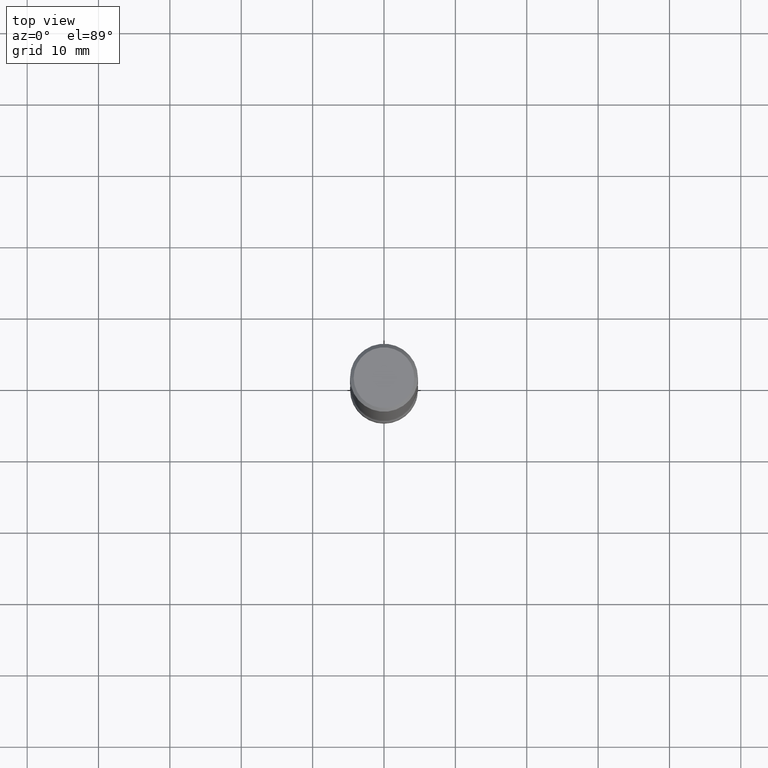
[diagram: clean part render]
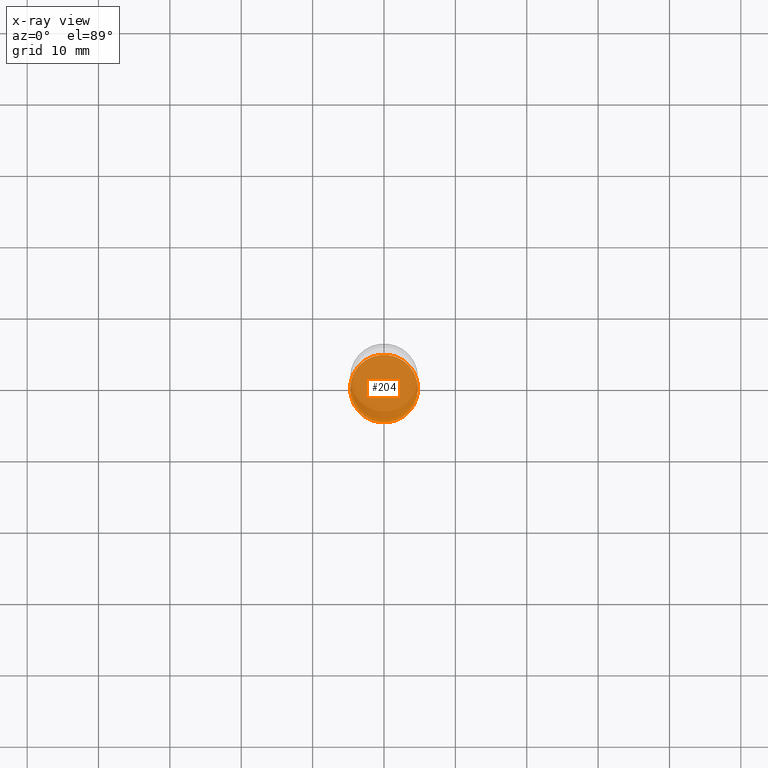
[diagram: x-ray — body ghosted, one internal face saturated and labeled with its STEP entity id]
A machine part, top view, then the same camera in x-ray: the body is ghosted and one INTERNAL B-rep face — a face not visible from any outside direction — is saturated and labeled: STEP entity #204.
In plain terms, the highlighted planar face has unit normal (0, -0, -1).
Its self-contained STEP definition (entity closure, byte-faithful):
#19 = DIRECTION ( 'NONE',  ( 2.445468806185136597E-29, -3.491481338843145583E-15, -1.000000000000000000 ) ) ;
#23 = CIRCLE ( 'NONE', #168, 0.1869999999999996387 ) ;
#24 = CARTESIAN_POINT ( 'NONE',  ( 8.559140821647976968E-29, -1.222018468595100934E-14, -3.500000000000000000 ) ) ;
#27 = CARTESIAN_POINT ( 'NONE',  ( -0.1869999999999996387, -1.088960961525404312E-14, -3.500000000000000000 ) ) ;
#69 = CARTESIAN_POINT ( 'NONE',  ( 0.1869999999999996387, -1.352661159257241509E-14, -3.500000000000000000 ) ) ;
#82 = ORIENTED_EDGE ( 'NONE', *, *, #565, .T. ) ;
#85 = EDGE_CURVE ( 'NONE', #132, #100, #343, .T. ) ;
#100 = VERTEX_POINT ( 'NONE', #27 ) ;
#112 = DIRECTION ( 'NONE',  ( 2.445468806185136597E-29, -3.491481338843145583E-15, -1.000000000000000000 ) ) ;
#132 = VERTEX_POINT ( 'NONE', #69 ) ;
#160 = DIRECTION ( 'NONE',  ( -1.000000000000000000, 6.982962677686268288E-15, 0.000000000000000000 ) ) ;
#168 = AXIS2_PLACEMENT_3D ( 'NONE', #24, #112, #293 ) ;
#204 = ADVANCED_FACE ( 'NONE', ( #462 ), #497, .T. ) ;
#224 = AXIS2_PLACEMENT_3D ( 'NONE', #456, #19, #160 ) ;
#266 = EDGE_LOOP ( 'NONE', ( #520, #82 ) ) ;
#293 = DIRECTION ( 'NONE',  ( -1.000000000000000000, 6.982962677686268288E-15, 0.000000000000000000 ) ) ;
#343 = CIRCLE ( 'NONE', #224, 0.1869999999999996387 ) ;
#456 = CARTESIAN_POINT ( 'NONE',  ( 8.559140821647976968E-29, -1.222018468595100934E-14, -3.500000000000000000 ) ) ;
#460 = DIRECTION ( 'NONE',  ( 2.438088387897960049E-29, -3.491481338843145188E-15, -1.000000000000000000 ) ) ;
#462 = FACE_OUTER_BOUND ( 'NONE', #266, .T. ) ;
#497 = PLANE ( 'NONE',  #542 ) ;
#500 = CARTESIAN_POINT ( 'NONE',  ( 1.305814020727414831E-15, 0.1869999999999874263, -3.500000000000000444 ) ) ;
#520 = ORIENTED_EDGE ( 'NONE', *, *, #85, .T. ) ;
#542 = AXIS2_PLACEMENT_3D ( 'NONE', #500, #460, #550 ) ;
#550 = DIRECTION ( 'NONE',  ( -1.000000000000000000, 6.982962677686265922E-15, -4.876176775795935793E-29 ) ) ;
#565 = EDGE_CURVE ( 'NONE', #100, #132, #23, .T. ) ;